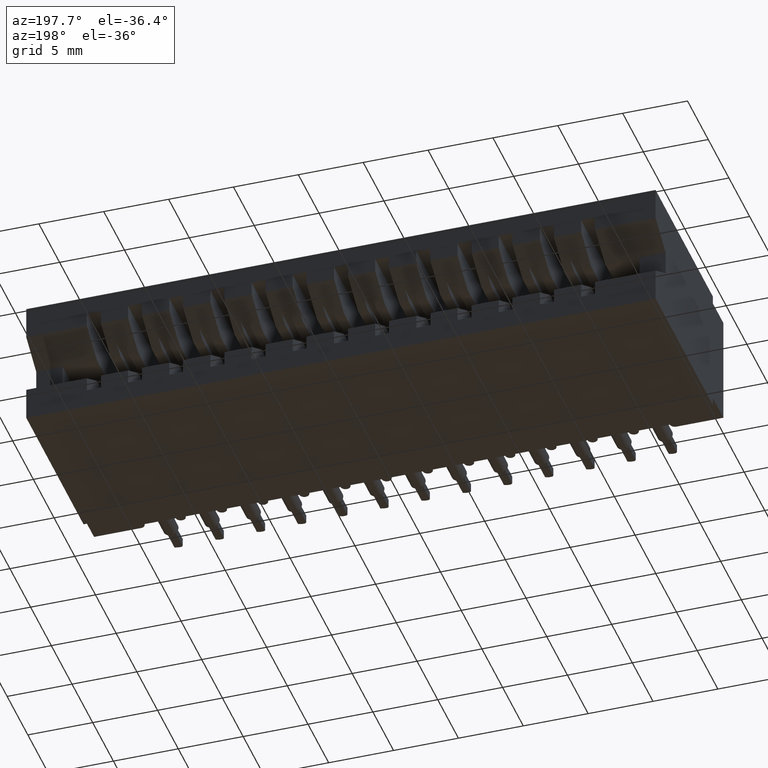
[diagram: clean part render]
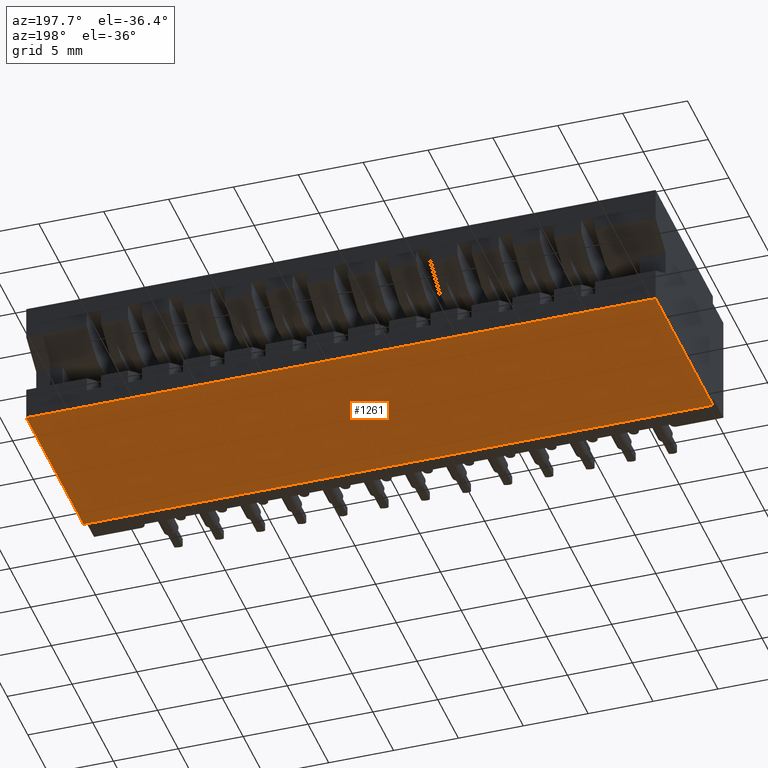
[diagram: same view with one face highlighted and labeled with its STEP entity id]
A machine part, auxiliary view. The second image highlights one B-rep face of the part: STEP entity #1261.
In plain terms, the highlighted planar face has unit normal (0, 0, 1).
Its self-contained STEP definition (entity closure, byte-faithful):
#1259 = VECTOR ( 'NONE', #8938, 39.37007874015748143 ) ;
#1261 = ADVANCED_FACE ( 'NONE', ( #1449 ), #16384, .F. ) ;
#1311 = CARTESIAN_POINT ( 'NONE',  ( 0.0000000000000000000, 0.6449999999999999067, -0.3900000000000000133 ) ) ;
#1449 = FACE_OUTER_BOUND ( 'NONE', #7753, .T. ) ;
#2034 = EDGE_CURVE ( 'NONE', #17113, #21216, #8582, .T. ) ;
#2380 = DIRECTION ( 'NONE',  ( -1.000000000000000000, -0.0000000000000000000, -0.0000000000000000000 ) ) ;
#3617 = CARTESIAN_POINT ( 'NONE',  ( 0.0000000000000000000, 0.6449999999999999067, -0.3900000000000000133 ) ) ;
#4684 = EDGE_CURVE ( 'NONE', #10668, #17113, #8073, .T. ) ;
#6173 = CARTESIAN_POINT ( 'NONE',  ( 1.909999999999999920, 0.1000000000000000056, -0.3900000000000000133 ) ) ;
#6442 = ORIENTED_EDGE ( 'NONE', *, *, #2034, .T. ) ;
#7315 = EDGE_CURVE ( 'NONE', #8557, #21216, #14200, .T. ) ;
#7753 = EDGE_LOOP ( 'NONE', ( #13563, #6442, #22952, #19122 ) ) ;
#8073 = LINE ( 'NONE', #18908, #10001 ) ;
#8428 = DIRECTION ( 'NONE',  ( -0.0000000000000000000, -1.000000000000000000, -0.0000000000000000000 ) ) ;
#8557 = VERTEX_POINT ( 'NONE', #18872 ) ;
#8582 = LINE ( 'NONE', #21801, #1259 ) ;
#8938 = DIRECTION ( 'NONE',  ( -1.000000000000000000, -0.0000000000000000000, -0.0000000000000000000 ) ) ;
#10001 = VECTOR ( 'NONE', #17448, 39.37007874015748143 ) ;
#10668 = VERTEX_POINT ( 'NONE', #22728 ) ;
#10956 = CARTESIAN_POINT ( 'NONE',  ( 0.0000000000000000000, 0.1000000000000000056, -0.3900000000000000133 ) ) ;
#12799 = EDGE_CURVE ( 'NONE', #10668, #8557, #20349, .T. ) ;
#13563 = ORIENTED_EDGE ( 'NONE', *, *, #4684, .T. ) ;
#14200 = LINE ( 'NONE', #1311, #22552 ) ;
#16384 = PLANE ( 'NONE',  #20262 ) ;
#17113 = VERTEX_POINT ( 'NONE', #6173 ) ;
#17448 = DIRECTION ( 'NONE',  ( -0.0000000000000000000, -1.000000000000000000, -0.0000000000000000000 ) ) ;
#17885 = VECTOR ( 'NONE', #2380, 39.37007874015748143 ) ;
#18172 = DIRECTION ( 'NONE',  ( 1.000000000000000000, 0.0000000000000000000, -0.0000000000000000000 ) ) ;
#18872 = CARTESIAN_POINT ( 'NONE',  ( 0.0000000000000000000, 0.6449999999999999067, -0.3900000000000000133 ) ) ;
#18908 = CARTESIAN_POINT ( 'NONE',  ( 1.909999999999999920, 0.6449999999999999067, -0.3900000000000000133 ) ) ;
#19002 = CARTESIAN_POINT ( 'NONE',  ( 0.0000000000000000000, 0.6449999999999999067, -0.3900000000000000133 ) ) ;
#19122 = ORIENTED_EDGE ( 'NONE', *, *, #12799, .F. ) ;
#20262 = AXIS2_PLACEMENT_3D ( 'NONE', #3617, #21544, #18172 ) ;
#20349 = LINE ( 'NONE', #19002, #17885 ) ;
#21216 = VERTEX_POINT ( 'NONE', #10956 ) ;
#21544 = DIRECTION ( 'NONE',  ( 0.0000000000000000000, 0.0000000000000000000, 1.000000000000000000 ) ) ;
#21801 = CARTESIAN_POINT ( 'NONE',  ( 1.909999999999999920, 0.1000000000000000056, -0.3900000000000000133 ) ) ;
#22552 = VECTOR ( 'NONE', #8428, 39.37007874015748143 ) ;
#22728 = CARTESIAN_POINT ( 'NONE',  ( 1.909999999999999920, 0.6449999999999999067, -0.3900000000000000133 ) ) ;
#22952 = ORIENTED_EDGE ( 'NONE', *, *, #7315, .F. ) ;